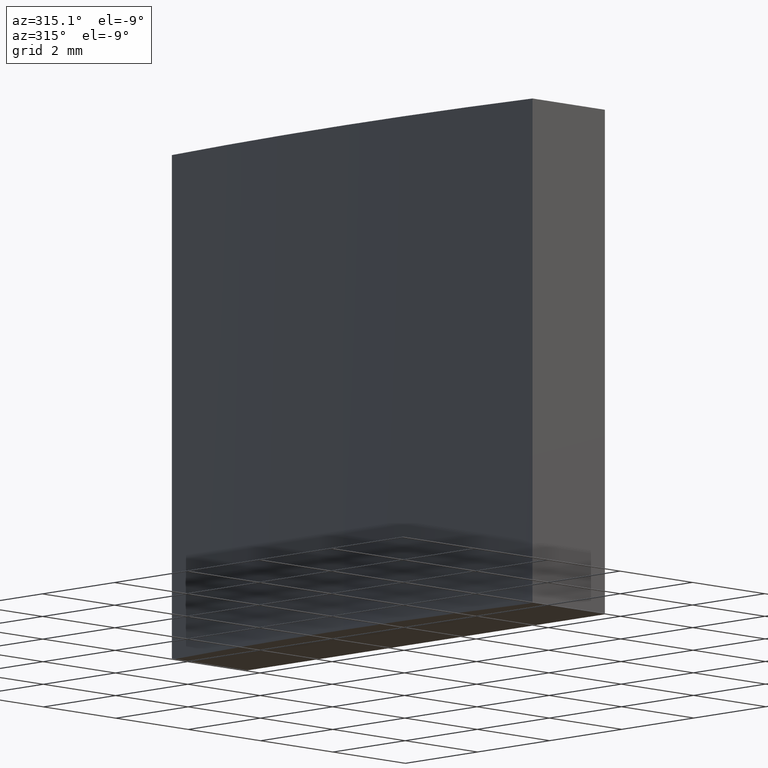
[diagram: clean part render]
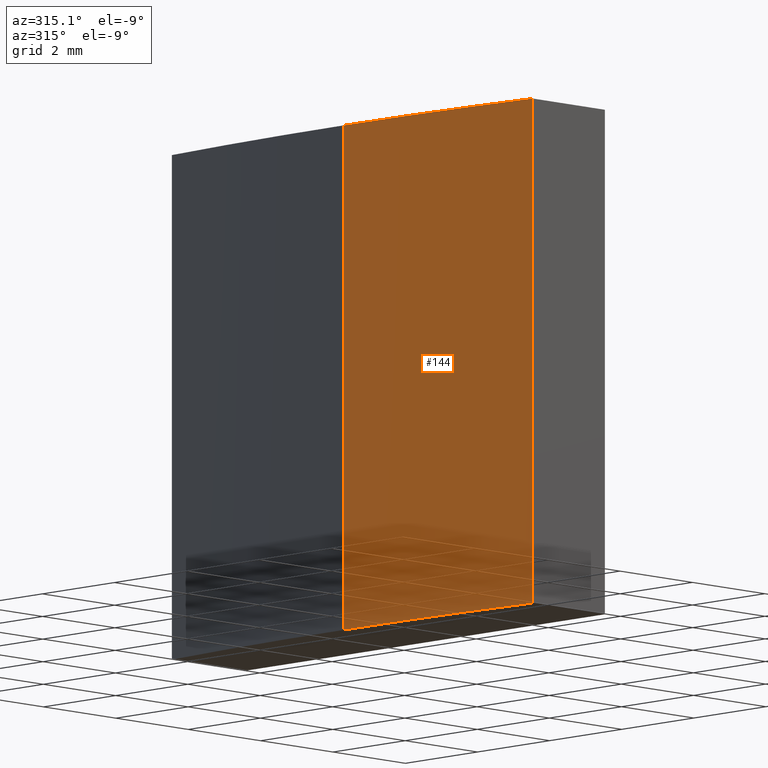
[diagram: same view with one face highlighted and labeled with its STEP entity id]
A machine part, auxiliary view. The second image highlights one B-rep face of the part: STEP entity #144.
In plain terms, the highlighted cylindrical surface (partial cylindrical patch) has radius 51.68 mm, axis along (-0, -0, -1).
Its self-contained STEP definition (entity closure, byte-faithful):
#2 = VECTOR ( 'NONE', #259, 1000.000000000000000 ) ;
#7 = CARTESIAN_POINT ( 'NONE',  ( -51.67999999999999972, 0.000000000000000000, 10.00000000000000000 ) ) ;
#8 = AXIS2_PLACEMENT_3D ( 'NONE', #173, #63, #89 ) ;
#9 = CARTESIAN_POINT ( 'NONE',  ( 0.000000000000000000, 0.000000000000000000, 10.00000000000000000 ) ) ;
#18 = VERTEX_POINT ( 'NONE', #145 ) ;
#26 = CARTESIAN_POINT ( 'NONE',  ( 0.000000000000000000, 0.000000000000000000, 10.00000000000000000 ) ) ;
#33 = ORIENTED_EDGE ( 'NONE', *, *, #216, .F. ) ;
#40 = EDGE_CURVE ( 'NONE', #105, #76, #203, .T. ) ;
#41 = CARTESIAN_POINT ( 'NONE',  ( -51.43755826242143314, -5.000000000000000888, 10.00000000000000000 ) ) ;
#49 = EDGE_CURVE ( 'NONE', #76, #207, #213, .T. ) ;
#61 = VECTOR ( 'NONE', #78, 1000.000000000000000 ) ;
#63 = DIRECTION ( 'NONE',  ( 0.000000000000000000, 0.000000000000000000, 1.000000000000000000 ) ) ;
#70 = AXIS2_PLACEMENT_3D ( 'NONE', #9, #152, #134 ) ;
#76 = VERTEX_POINT ( 'NONE', #108 ) ;
#78 = DIRECTION ( 'NONE',  ( -0.000000000000000000, -0.000000000000000000, -1.000000000000000000 ) ) ;
#89 = DIRECTION ( 'NONE',  ( 1.000000000000000000, 0.000000000000000000, 0.000000000000000000 ) ) ;
#105 = VERTEX_POINT ( 'NONE', #255 ) ;
#108 = CARTESIAN_POINT ( 'NONE',  ( -51.67999999999999972, 0.000000000000000000, 0.000000000000000000 ) ) ;
#118 = ORIENTED_EDGE ( 'NONE', *, *, #49, .T. ) ;
#123 = ORIENTED_EDGE ( 'NONE', *, *, #124, .F. ) ;
#124 = EDGE_CURVE ( 'NONE', #105, #18, #197, .T. ) ;
#132 = FACE_OUTER_BOUND ( 'NONE', #164, .T. ) ;
#134 = DIRECTION ( 'NONE',  ( 1.000000000000000000, 0.000000000000000000, 0.000000000000000000 ) ) ;
#136 = CYLINDRICAL_SURFACE ( 'NONE', #262, 51.67999999999999972 ) ;
#144 = ADVANCED_FACE ( 'NONE', ( #132 ), #136, .T. ) ;
#145 = CARTESIAN_POINT ( 'NONE',  ( -51.43755826242143314, -5.000000000000000888, 10.00000000000000000 ) ) ;
#146 = LINE ( 'NONE', #41, #61 ) ;
#152 = DIRECTION ( 'NONE',  ( 0.000000000000000000, 0.000000000000000000, 1.000000000000000000 ) ) ;
#164 = EDGE_LOOP ( 'NONE', ( #123, #222, #118, #33 ) ) ;
#173 = CARTESIAN_POINT ( 'NONE',  ( 0.000000000000000000, 0.000000000000000000, 0.000000000000000000 ) ) ;
#197 = CIRCLE ( 'NONE', #70, 51.67999999999999972 ) ;
#199 = DIRECTION ( 'NONE',  ( -1.000000000000000000, 0.000000000000000000, 0.000000000000000000 ) ) ;
#203 = LINE ( 'NONE', #7, #2 ) ;
#207 = VERTEX_POINT ( 'NONE', #225 ) ;
#213 = CIRCLE ( 'NONE', #8, 51.67999999999999972 ) ;
#214 = DIRECTION ( 'NONE',  ( -0.000000000000000000, -0.000000000000000000, -1.000000000000000000 ) ) ;
#216 = EDGE_CURVE ( 'NONE', #18, #207, #146, .T. ) ;
#222 = ORIENTED_EDGE ( 'NONE', *, *, #40, .T. ) ;
#225 = CARTESIAN_POINT ( 'NONE',  ( -51.43755826242143314, -5.000000000000000888, 0.000000000000000000 ) ) ;
#255 = CARTESIAN_POINT ( 'NONE',  ( -51.67999999999999972, 0.000000000000000000, 10.00000000000000000 ) ) ;
#259 = DIRECTION ( 'NONE',  ( -0.000000000000000000, -0.000000000000000000, -1.000000000000000000 ) ) ;
#262 = AXIS2_PLACEMENT_3D ( 'NONE', #26, #214, #199 ) ;